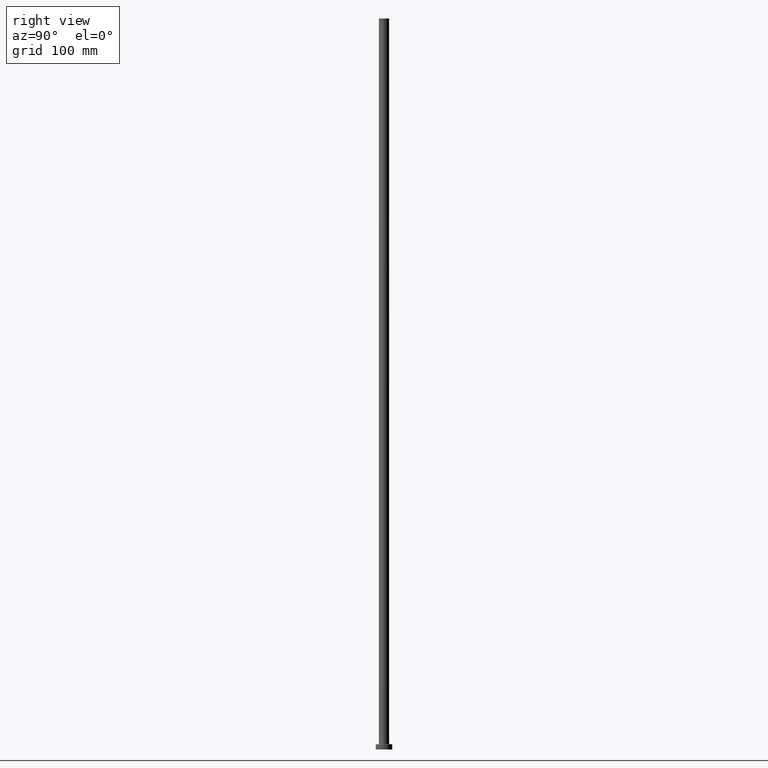
[diagram: clean part render]
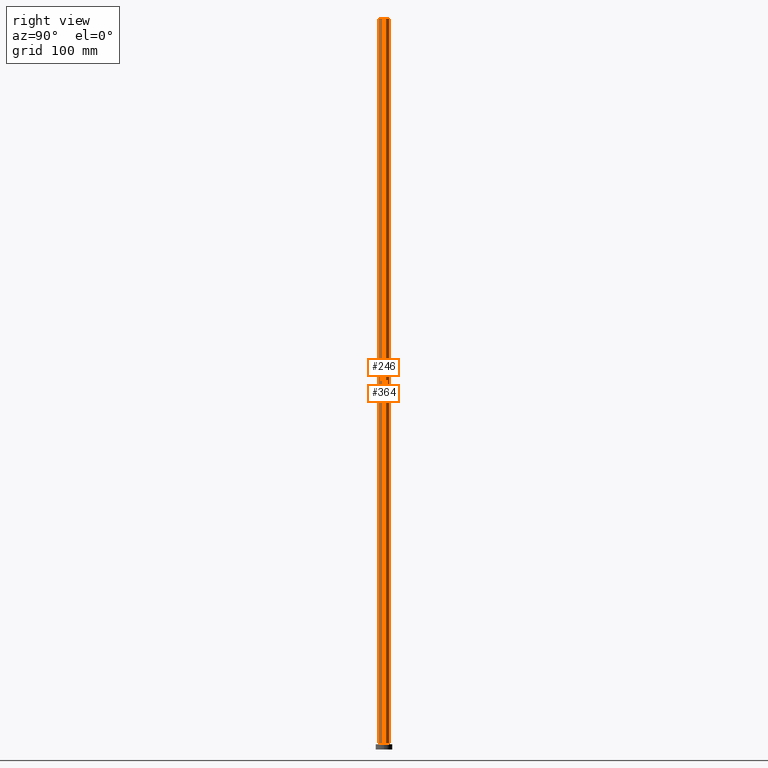
[diagram: same view with one multi-face feature highlighted, each face labeled with its STEP entity id]
A machine part, right view. The highlighted faces form ONE feature: a constant-radius fillet chain: 2 tangent blend faces with common blend radius 5 mm. The faces share edges in the B-rep.
Their STEP definitions:
[1] entity #246 (Cylinder):
#22 = DIRECTION ( 'NONE',  ( 0.000000000000000000, 0.000000000000000000, 1.000000000000000000 ) ) ;
#36 = CARTESIAN_POINT ( 'NONE',  ( -5.000000000000000000, 0.000000000000000000, 5.499999999999949374 ) ) ;
#45 = VERTEX_POINT ( 'NONE', #340 ) ;
#55 = DIRECTION ( 'NONE',  ( -0.000000000000000000, -0.000000000000000000, -1.000000000000000000 ) ) ;
#62 = DIRECTION ( 'NONE',  ( -0.000000000000000000, -0.000000000000000000, -1.000000000000000000 ) ) ;
#69 = CARTESIAN_POINT ( 'NONE',  ( 0.000000000000000000, 0.000000000000000000, 700.0000000000000000 ) ) ;
#75 = ORIENTED_EDGE ( 'NONE', *, *, #123, .F. ) ;
#122 = LINE ( 'NONE', #343, #250 ) ;
#123 = EDGE_CURVE ( 'NONE', #456, #45, #268, .T. ) ;
#125 = CIRCLE ( 'NONE', #237, 5.000000000000000000 ) ;
#129 = DIRECTION ( 'NONE',  ( 1.000000000000000000, 0.000000000000000000, 0.000000000000000000 ) ) ;
#132 = EDGE_CURVE ( 'NONE', #248, #360, #122, .T. ) ;
#138 = CYLINDRICAL_SURFACE ( 'NONE', #382, 5.000000000000000000 ) ;
#139 = VECTOR ( 'NONE', #55, 1000.000000000000000 ) ;
#181 = ORIENTED_EDGE ( 'NONE', *, *, #132, .T. ) ;
#186 = EDGE_CURVE ( 'NONE', #248, #456, #375, .T. ) ;
#193 = AXIS2_PLACEMENT_3D ( 'NONE', #312, #231, #446 ) ;
#195 = CARTESIAN_POINT ( 'NONE',  ( 5.000000000000000000, 6.123233995736766282E-16, 700.0000000000000000 ) ) ;
#231 = DIRECTION ( 'NONE',  ( 0.000000000000000000, 0.000000000000000000, 1.000000000000000000 ) ) ;
#235 = EDGE_CURVE ( 'NONE', #360, #45, #125, .T. ) ;
#237 = AXIS2_PLACEMENT_3D ( 'NONE', #457, #22, #129 ) ;
#246 = ADVANCED_FACE ( 'NONE', ( #424 ), #138, .T. ) ;
#248 = VERTEX_POINT ( 'NONE', #276 ) ;
#250 = VECTOR ( 'NONE', #374, 1000.000000000000000 ) ;
#253 = ORIENTED_EDGE ( 'NONE', *, *, #186, .F. ) ;
#263 = ORIENTED_EDGE ( 'NONE', *, *, #235, .T. ) ;
#268 = LINE ( 'NONE', #195, #139 ) ;
#276 = CARTESIAN_POINT ( 'NONE',  ( -5.000000000000000000, 0.000000000000000000, 700.0000000000000000 ) ) ;
#292 = EDGE_LOOP ( 'NONE', ( #75, #253, #181, #263 ) ) ;
#301 = CARTESIAN_POINT ( 'NONE',  ( 5.000000000000000000, 6.123233995736766282E-16, 700.0000000000000000 ) ) ;
#312 = CARTESIAN_POINT ( 'NONE',  ( 0.000000000000000000, 0.000000000000000000, 700.0000000000000000 ) ) ;
#316 = DIRECTION ( 'NONE',  ( -1.000000000000000000, 0.000000000000000000, 0.000000000000000000 ) ) ;
#340 = CARTESIAN_POINT ( 'NONE',  ( 5.000000000000000000, 6.123233995736766282E-16, 5.499999999999949374 ) ) ;
#343 = CARTESIAN_POINT ( 'NONE',  ( -5.000000000000000000, 0.000000000000000000, 700.0000000000000000 ) ) ;
#360 = VERTEX_POINT ( 'NONE', #36 ) ;
#374 = DIRECTION ( 'NONE',  ( -0.000000000000000000, -0.000000000000000000, -1.000000000000000000 ) ) ;
#375 = CIRCLE ( 'NONE', #193, 5.000000000000000000 ) ;
#382 = AXIS2_PLACEMENT_3D ( 'NONE', #69, #62, #316 ) ;
#424 = FACE_OUTER_BOUND ( 'NONE', #292, .T. ) ;
#446 = DIRECTION ( 'NONE',  ( 1.000000000000000000, 0.000000000000000000, 0.000000000000000000 ) ) ;
#456 = VERTEX_POINT ( 'NONE', #301 ) ;
#457 = CARTESIAN_POINT ( 'NONE',  ( 0.000000000000000000, 0.000000000000000000, 5.499999999999949374 ) ) ;
[2] entity #364 (Cylinder):
#30 = DIRECTION ( 'NONE',  ( 0.000000000000000000, 0.000000000000000000, 1.000000000000000000 ) ) ;
#33 = DIRECTION ( 'NONE',  ( 1.000000000000000000, 0.000000000000000000, 0.000000000000000000 ) ) ;
#36 = CARTESIAN_POINT ( 'NONE',  ( -5.000000000000000000, 0.000000000000000000, 5.499999999999949374 ) ) ;
#43 = CIRCLE ( 'NONE', #148, 5.000000000000000000 ) ;
#45 = VERTEX_POINT ( 'NONE', #340 ) ;
#55 = DIRECTION ( 'NONE',  ( -0.000000000000000000, -0.000000000000000000, -1.000000000000000000 ) ) ;
#56 = CIRCLE ( 'NONE', #94, 5.000000000000000000 ) ;
#71 = DIRECTION ( 'NONE',  ( -1.000000000000000000, 0.000000000000000000, 0.000000000000000000 ) ) ;
#80 = DIRECTION ( 'NONE',  ( 0.000000000000000000, 0.000000000000000000, 1.000000000000000000 ) ) ;
#84 = CARTESIAN_POINT ( 'NONE',  ( 0.000000000000000000, 0.000000000000000000, 5.499999999999949374 ) ) ;
#94 = AXIS2_PLACEMENT_3D ( 'NONE', #84, #30, #33 ) ;
#106 = FACE_OUTER_BOUND ( 'NONE', #217, .T. ) ;
#122 = LINE ( 'NONE', #343, #250 ) ;
#123 = EDGE_CURVE ( 'NONE', #456, #45, #268, .T. ) ;
#132 = EDGE_CURVE ( 'NONE', #248, #360, #122, .T. ) ;
#139 = VECTOR ( 'NONE', #55, 1000.000000000000000 ) ;
#145 = CARTESIAN_POINT ( 'NONE',  ( 0.000000000000000000, 0.000000000000000000, 700.0000000000000000 ) ) ;
#148 = AXIS2_PLACEMENT_3D ( 'NONE', #296, #80, #291 ) ;
#177 = CYLINDRICAL_SURFACE ( 'NONE', #339, 5.000000000000000000 ) ;
#195 = CARTESIAN_POINT ( 'NONE',  ( 5.000000000000000000, 6.123233995736766282E-16, 700.0000000000000000 ) ) ;
#217 = EDGE_LOOP ( 'NONE', ( #260, #300, #227, #290 ) ) ;
#227 = ORIENTED_EDGE ( 'NONE', *, *, #314, .T. ) ;
#248 = VERTEX_POINT ( 'NONE', #276 ) ;
#250 = VECTOR ( 'NONE', #374, 1000.000000000000000 ) ;
#260 = ORIENTED_EDGE ( 'NONE', *, *, #392, .F. ) ;
#268 = LINE ( 'NONE', #195, #139 ) ;
#276 = CARTESIAN_POINT ( 'NONE',  ( -5.000000000000000000, 0.000000000000000000, 700.0000000000000000 ) ) ;
#290 = ORIENTED_EDGE ( 'NONE', *, *, #132, .F. ) ;
#291 = DIRECTION ( 'NONE',  ( 1.000000000000000000, 0.000000000000000000, 0.000000000000000000 ) ) ;
#296 = CARTESIAN_POINT ( 'NONE',  ( 0.000000000000000000, 0.000000000000000000, 700.0000000000000000 ) ) ;
#300 = ORIENTED_EDGE ( 'NONE', *, *, #123, .T. ) ;
#301 = CARTESIAN_POINT ( 'NONE',  ( 5.000000000000000000, 6.123233995736766282E-16, 700.0000000000000000 ) ) ;
#314 = EDGE_CURVE ( 'NONE', #45, #360, #56, .T. ) ;
#326 = DIRECTION ( 'NONE',  ( -0.000000000000000000, -0.000000000000000000, -1.000000000000000000 ) ) ;
#339 = AXIS2_PLACEMENT_3D ( 'NONE', #145, #326, #71 ) ;
#340 = CARTESIAN_POINT ( 'NONE',  ( 5.000000000000000000, 6.123233995736766282E-16, 5.499999999999949374 ) ) ;
#343 = CARTESIAN_POINT ( 'NONE',  ( -5.000000000000000000, 0.000000000000000000, 700.0000000000000000 ) ) ;
#360 = VERTEX_POINT ( 'NONE', #36 ) ;
#364 = ADVANCED_FACE ( 'NONE', ( #106 ), #177, .T. ) ;
#374 = DIRECTION ( 'NONE',  ( -0.000000000000000000, -0.000000000000000000, -1.000000000000000000 ) ) ;
#392 = EDGE_CURVE ( 'NONE', #456, #248, #43, .T. ) ;
#456 = VERTEX_POINT ( 'NONE', #301 ) ;